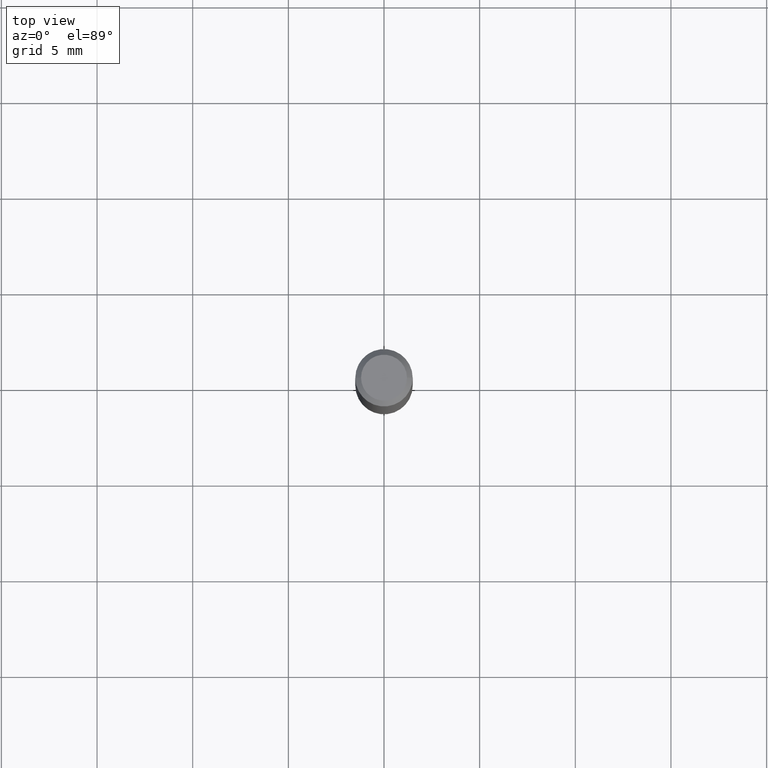
[diagram: clean part render]
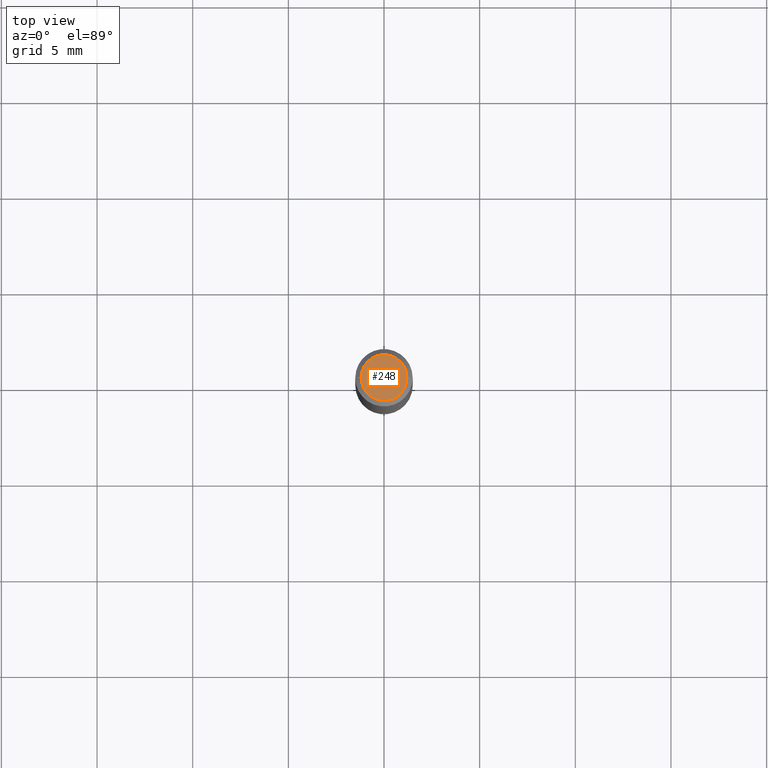
[diagram: same view with one face highlighted and labeled with its STEP entity id]
A machine part, top view. The second image highlights one B-rep face of the part: STEP entity #248.
In plain terms, the highlighted planar face has unit normal (0, -0, -1).
Its self-contained STEP definition (entity closure, byte-faithful):
#27 = DIRECTION ( 'NONE',  ( 1.000000000000000000, -6.982962677686266711E-15, 4.876185090822587894E-29 ) ) ;
#30 = CARTESIAN_POINT ( 'NONE',  ( 8.265746106709734507E-48, -1.180129479067563789E-33, -3.380025165646692144E-19 ) ) ;
#35 = DIRECTION ( 'NONE',  ( 2.438088387897960049E-29, -3.491481338843145188E-15, -1.000000000000000000 ) ) ;
#39 = CARTESIAN_POINT ( 'NONE',  ( -0.04724000000000000421, 3.504923541997677355E-16, -3.380025165670481712E-19 ) ) ;
#89 = ORIENTED_EDGE ( 'NONE', *, *, #284, .T. ) ;
#103 = DIRECTION ( 'NONE',  ( 1.000000000000000000, -6.982962677686266711E-15, 4.876185090822587894E-29 ) ) ;
#152 = AXIS2_PLACEMENT_3D ( 'NONE', #326, #35, #434 ) ;
#159 = ORIENTED_EDGE ( 'NONE', *, *, #288, .T. ) ;
#221 = DIRECTION ( 'NONE',  ( -2.445468806185136597E-29, 3.491481338843145583E-15, 1.000000000000000000 ) ) ;
#248 = ADVANCED_FACE ( 'NONE', ( #297 ), #444, .F. ) ;
#284 = EDGE_CURVE ( 'NONE', #399, #403, #289, .T. ) ;
#288 = EDGE_CURVE ( 'NONE', #403, #399, #486, .T. ) ;
#289 = CIRCLE ( 'NONE', #348, 0.04724000000000000421 ) ;
#293 = DIRECTION ( 'NONE',  ( -2.445468806185136597E-29, 3.491481338843145583E-15, 1.000000000000000000 ) ) ;
#297 = FACE_OUTER_BOUND ( 'NONE', #456, .T. ) ;
#326 = CARTESIAN_POINT ( 'NONE',  ( 4.132873053354867254E-48, -5.900647395337818946E-34, -1.690012582823346072E-19 ) ) ;
#332 = CARTESIAN_POINT ( 'NONE',  ( 8.265746106709734507E-48, -1.180129479067563789E-33, -3.380025165646692144E-19 ) ) ;
#344 = CARTESIAN_POINT ( 'NONE',  ( 0.04724000000000000421, -3.852183633974369345E-16, -3.380025165621689721E-19 ) ) ;
#348 = AXIS2_PLACEMENT_3D ( 'NONE', #30, #221, #27 ) ;
#399 = VERTEX_POINT ( 'NONE', #344 ) ;
#403 = VERTEX_POINT ( 'NONE', #39 ) ;
#434 = DIRECTION ( 'NONE',  ( -1.000000000000000000, 6.982962677686265922E-15, -4.876176775795935793E-29 ) ) ;
#444 = PLANE ( 'NONE',  #152 ) ;
#456 = EDGE_LOOP ( 'NONE', ( #159, #89 ) ) ;
#469 = AXIS2_PLACEMENT_3D ( 'NONE', #332, #293, #103 ) ;
#486 = CIRCLE ( 'NONE', #469, 0.04724000000000000421 ) ;